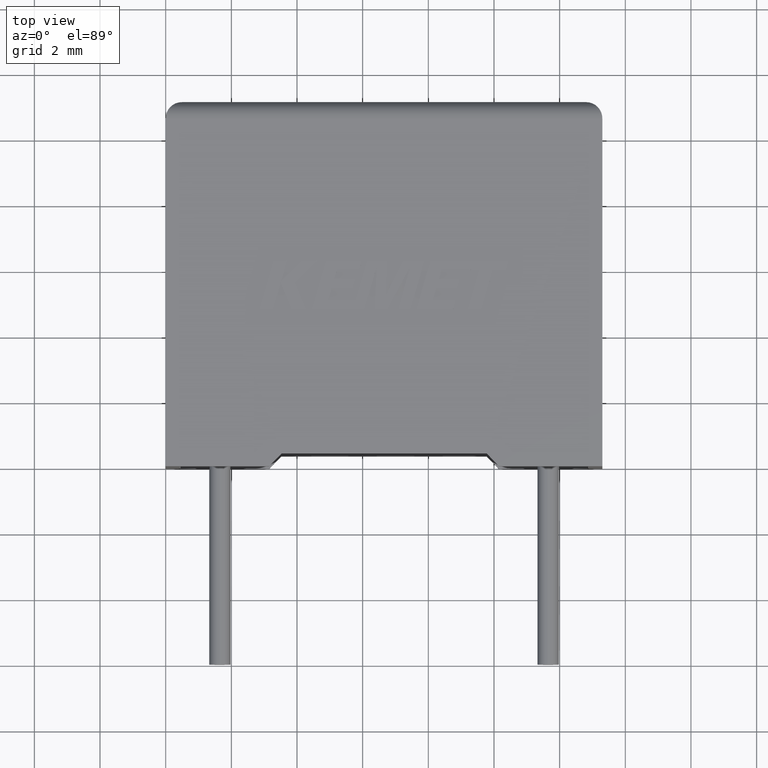
[diagram: clean part render]
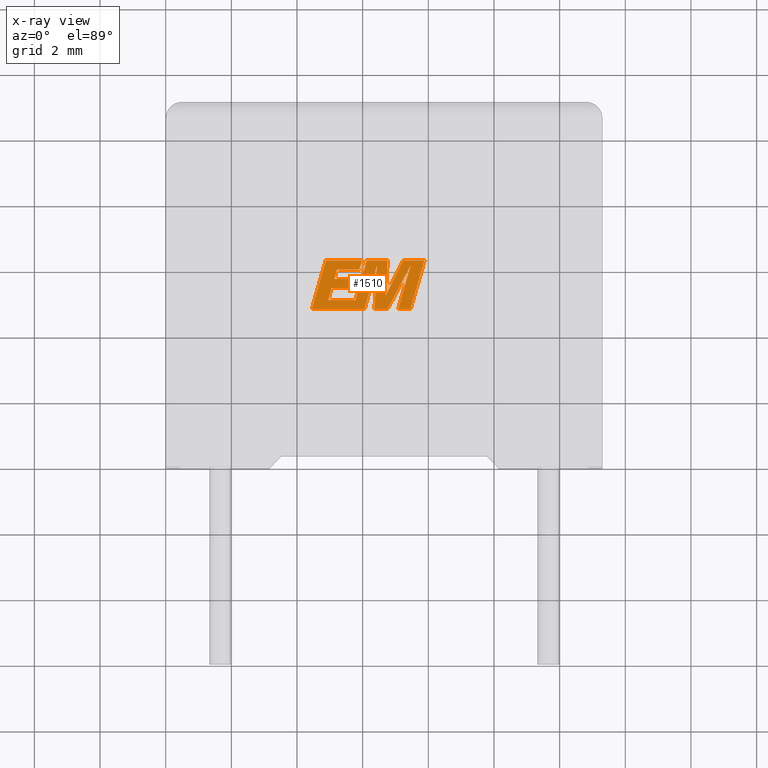
[diagram: x-ray — body ghosted, one internal face saturated and labeled with its STEP entity id]
A machine part, top view, then the same camera in x-ray: the body is ghosted and one INTERNAL B-rep face — a face not visible from any outside direction — is saturated and labeled: STEP entity #1510.
In plain terms, the highlighted planar face has unit normal (0, 0, -1).
Its self-contained STEP definition (entity closure, byte-faithful):
#1 = LINE ( 'NONE', #2797, #110 ) ;
#28 = CARTESIAN_POINT ( 'NONE',  ( 5.895819663393493393, 5.982482753930726815, 5.200000000000000178 ) ) ;
#61 = AXIS2_PLACEMENT_3D ( 'NONE', #2586, #1166, #503 ) ;
#104 = ORIENTED_EDGE ( 'NONE', *, *, #723, .F. ) ;
#107 = CARTESIAN_POINT ( 'NONE',  ( 7.459119663545648926, 6.108967968799302817, 5.200000000000000178 ) ) ;
#110 = VECTOR ( 'NONE', #671, 1000.000000000000114 ) ;
#144 = VECTOR ( 'NONE', #1654, 1000.000000000000114 ) ;
#169 = VECTOR ( 'NONE', #629, 1000.000000000000000 ) ;
#188 = DIRECTION ( 'NONE',  ( 0.4668459304955080436, 0.8843386665637680277, 0.000000000000000000 ) ) ;
#193 = CARTESIAN_POINT ( 'NONE',  ( 4.875807269723588355, 6.266041733162105665, 5.200000000000000178 ) ) ;
#197 = VERTEX_POINT ( 'NONE', #2686 ) ;
#207 = VECTOR ( 'NONE', #244, 1000.000000000000000 ) ;
#216 = LINE ( 'NONE', #1139, #352 ) ;
#232 = DIRECTION ( 'NONE',  ( -1.000000000000000000, 0.000000000000000000, 0.000000000000000000 ) ) ;
#244 = DIRECTION ( 'NONE',  ( 1.000000000000000000, 0.000000000000000000, 0.000000000000000000 ) ) ;
#255 = VECTOR ( 'NONE', #1587, 1000.000000000000227 ) ;
#265 = EDGE_CURVE ( 'NONE', #2612, #1497, #536, .T. ) ;
#283 = EDGE_CURVE ( 'NONE', #2634, #1893, #782, .T. ) ;
#317 = DIRECTION ( 'NONE',  ( 0.2759782365590697228, 0.9611638845408966292, 0.000000000000000000 ) ) ;
#327 = ORIENTED_EDGE ( 'NONE', *, *, #1195, .F. ) ;
#352 = VECTOR ( 'NONE', #2345, 1000.000000000000000 ) ;
#362 = CARTESIAN_POINT ( 'NONE',  ( 5.057893616679458582, 5.430000009952513196, 5.200000000000000178 ) ) ;
#376 = CARTESIAN_POINT ( 'NONE',  ( 4.875807269723588355, 6.266041733162105665, 5.200000000000000178 ) ) ;
#383 = VERTEX_POINT ( 'NONE', #2536 ) ;
#393 = DIRECTION ( 'NONE',  ( -1.000000000000000000, 0.000000000000000000, 0.000000000000000000 ) ) ;
#413 = EDGE_CURVE ( 'NONE', #781, #600, #1628, .T. ) ;
#416 = VERTEX_POINT ( 'NONE', #1910 ) ;
#453 = CARTESIAN_POINT ( 'NONE',  ( 7.076429867546158547, 4.776329999999952669, 5.200000000000000178 ) ) ;
#460 = EDGE_CURVE ( 'NONE', #1689, #2651, #1376, .T. ) ;
#461 = LINE ( 'NONE', #2805, #255 ) ;
#473 = CARTESIAN_POINT ( 'NONE',  ( 5.778212511156970876, 5.059748560896471403, 5.200000000000000178 ) ) ;
#488 = VERTEX_POINT ( 'NONE', #1881 ) ;
#496 = CARTESIAN_POINT ( 'NONE',  ( 5.775866166035169336, 5.705396607103880413, 5.200000000000000178 ) ) ;
#502 = EDGE_CURVE ( 'NONE', #1497, #871, #1, .T. ) ;
#503 = DIRECTION ( 'NONE',  ( -1.000000000000000000, 0.000000000000000000, 0.000000000000000000 ) ) ;
#536 = LINE ( 'NONE', #1685, #986 ) ;
#538 = DIRECTION ( 'NONE',  ( -0.2760118818968580467, -0.9611542233438683525, 0.000000000000000000 ) ) ;
#559 = DIRECTION ( 'NONE',  ( 1.000000000000000000, 0.000000000000000000, 0.000000000000000000 ) ) ;
#600 = VERTEX_POINT ( 'NONE', #731 ) ;
#601 = CARTESIAN_POINT ( 'NONE',  ( 5.697204719198019518, 5.430000009952513196, 5.200000000000000178 ) ) ;
#621 = LINE ( 'NONE', #1312, #2038 ) ;
#629 = DIRECTION ( 'NONE',  ( -1.000000000000000000, 0.000000000000000000, 0.000000000000000000 ) ) ;
#671 = DIRECTION ( 'NONE',  ( -0.05596501978069369498, -0.9984327301130239141, 0.000000000000000000 ) ) ;
#686 = VECTOR ( 'NONE', #1622, 1000.000000000000000 ) ;
#720 = VERTEX_POINT ( 'NONE', #376 ) ;
#721 = CARTESIAN_POINT ( 'NONE',  ( 7.883291754265685292, 6.266041733162105665, 5.200000000000000178 ) ) ;
#723 = EDGE_CURVE ( 'NONE', #2399, #720, #621, .T. ) ;
#731 = CARTESIAN_POINT ( 'NONE',  ( 6.759361676519667128, 6.266041733162105665, 5.200000000000000178 ) ) ;
#737 = EDGE_LOOP ( 'NONE', ( #2693, #327, #2290, #2417, #3003, #1469, #2865, #1142, #1230, #2315, #104, #2250, #1514, #2989, #1289, #1130, #2434, #2849, #1158, #2273, #1860, #2173, #2753 ) ) ;
#781 = VERTEX_POINT ( 'NONE', #1796 ) ;
#782 = LINE ( 'NONE', #2930, #2774 ) ;
#816 = LINE ( 'NONE', #107, #1804 ) ;
#838 = VERTEX_POINT ( 'NONE', #453 ) ;
#841 = VECTOR ( 'NONE', #2944, 1000.000000000000000 ) ;
#848 = LINE ( 'NONE', #2495, #2410 ) ;
#854 = EDGE_CURVE ( 'NONE', #2739, #781, #216, .T. ) ;
#859 = LINE ( 'NONE', #1802, #169 ) ;
#861 = CARTESIAN_POINT ( 'NONE',  ( 5.217091774605201238, 5.982482753930726815, 5.200000000000000178 ) ) ;
#871 = VERTEX_POINT ( 'NONE', #1435 ) ;
#893 = CARTESIAN_POINT ( 'NONE',  ( 7.459119663545648926, 6.108967968799302817, 5.200000000000000178 ) ) ;
#906 = LINE ( 'NONE', #496, #2682 ) ;
#907 = LINE ( 'NONE', #1409, #144 ) ;
#936 = DIRECTION ( 'NONE',  ( 0.2732148821746286371, 0.9619530280415482526, 0.000000000000000000 ) ) ;
#974 = CARTESIAN_POINT ( 'NONE',  ( 7.883291754265685292, 6.266041733162105665, 5.200000000000000178 ) ) ;
#986 = VECTOR ( 'NONE', #317, 1000.000000000000227 ) ;
#1019 = LINE ( 'NONE', #2913, #2505 ) ;
#1047 = VERTEX_POINT ( 'NONE', #2023 ) ;
#1048 = EDGE_CURVE ( 'NONE', #2151, #2612, #1055, .T. ) ;
#1055 = LINE ( 'NONE', #2498, #2120 ) ;
#1070 = CARTESIAN_POINT ( 'NONE',  ( 5.976356374482169720, 6.266041733162105665, 5.200000000000000178 ) ) ;
#1130 = ORIENTED_EDGE ( 'NONE', *, *, #2055, .F. ) ;
#1139 = CARTESIAN_POINT ( 'NONE',  ( 7.229914320042385434, 6.266041733162105665, 5.200000000000000178 ) ) ;
#1142 = ORIENTED_EDGE ( 'NONE', *, *, #265, .F. ) ;
#1158 = ORIENTED_EDGE ( 'NONE', *, *, #2131, .F. ) ;
#1159 = CARTESIAN_POINT ( 'NONE',  ( 5.778212511156970876, 5.059748560896471403, 5.200000000000000178 ) ) ;
#1166 = DIRECTION ( 'NONE',  ( 0.000000000000000000, 0.000000000000000000, -1.000000000000000000 ) ) ;
#1195 = EDGE_CURVE ( 'NONE', #2700, #2313, #1940, .T. ) ;
#1230 = ORIENTED_EDGE ( 'NONE', *, *, #1048, .F. ) ;
#1264 = DIRECTION ( 'NONE',  ( 1.000000000000000000, 0.000000000000000000, 0.000000000000000000 ) ) ;
#1282 = VECTOR ( 'NONE', #936, 1000.000000000000227 ) ;
#1289 = ORIENTED_EDGE ( 'NONE', *, *, #1839, .F. ) ;
#1312 = CARTESIAN_POINT ( 'NONE',  ( 5.976356374482169720, 6.266041733162105665, 5.200000000000000178 ) ) ;
#1327 = EDGE_CURVE ( 'NONE', #383, #416, #1490, .T. ) ;
#1371 = EDGE_CURVE ( 'NONE', #2313, #2739, #1891, .T. ) ;
#1376 = LINE ( 'NONE', #1386, #207 ) ;
#1383 = FACE_OUTER_BOUND ( 'NONE', #737, .T. ) ;
#1386 = CARTESIAN_POINT ( 'NONE',  ( 5.217091774605201238, 5.982482753930726815, 5.200000000000000178 ) ) ;
#1408 = DIRECTION ( 'NONE',  ( -1.000000000000000000, 0.000000000000000000, 0.000000000000000000 ) ) ;
#1409 = CARTESIAN_POINT ( 'NONE',  ( 4.952398678476170879, 5.059748560896471403, 5.200000000000000178 ) ) ;
#1429 = LINE ( 'NONE', #28, #1282 ) ;
#1435 = CARTESIAN_POINT ( 'NONE',  ( 6.358470907063627386, 4.776329999999952669, 5.200000000000000178 ) ) ;
#1469 = ORIENTED_EDGE ( 'NONE', *, *, #1764, .F. ) ;
#1490 = LINE ( 'NONE', #362, #2032 ) ;
#1497 = VERTEX_POINT ( 'NONE', #1905 ) ;
#1510 = ADVANCED_FACE ( 'NONE', ( #1383 ), #2142, .T. ) ;
#1514 = ORIENTED_EDGE ( 'NONE', *, *, #460, .F. ) ;
#1521 = CARTESIAN_POINT ( 'NONE',  ( 6.358470907063627386, 4.776329999999952669, 5.200000000000000178 ) ) ;
#1532 = CARTESIAN_POINT ( 'NONE',  ( 5.895819663393493393, 5.982482753930726815, 5.200000000000000178 ) ) ;
#1547 = LINE ( 'NONE', #193, #2322 ) ;
#1561 = VECTOR ( 'NONE', #2442, 1000.000000000000000 ) ;
#1587 = DIRECTION ( 'NONE',  ( 0.2793947940878294123, 0.9601763114327593884, 0.000000000000000000 ) ) ;
#1614 = DIRECTION ( 'NONE',  ( 0.05375259206908576670, 0.9985542843760946141, 0.000000000000000000 ) ) ;
#1622 = DIRECTION ( 'NONE',  ( -1.000000000000000000, 0.000000000000000000, 0.000000000000000000 ) ) ;
#1628 = LINE ( 'NONE', #1896, #3023 ) ;
#1654 = DIRECTION ( 'NONE',  ( 0.2740217765954066076, 0.9617234872620595842, 0.000000000000000000 ) ) ;
#1685 = CARTESIAN_POINT ( 'NONE',  ( 6.052005620297330246, 4.776329999999952669, 5.200000000000000178 ) ) ;
#1689 = VERTEX_POINT ( 'NONE', #861 ) ;
#1724 = VECTOR ( 'NONE', #232, 1000.000000000000000 ) ;
#1764 = EDGE_CURVE ( 'NONE', #871, #2634, #2528, .T. ) ;
#1785 = EDGE_CURVE ( 'NONE', #720, #2151, #1547, .T. ) ;
#1796 = CARTESIAN_POINT ( 'NONE',  ( 6.702071623094297159, 5.201772530543696149, 5.200000000000000178 ) ) ;
#1802 = CARTESIAN_POINT ( 'NONE',  ( 6.759361676519667128, 6.266041733162105665, 5.200000000000000178 ) ) ;
#1804 = VECTOR ( 'NONE', #538, 1000.000000000000114 ) ;
#1836 = CARTESIAN_POINT ( 'NONE',  ( 4.447128202130666175, 4.776329999999951781, 5.200000000000000178 ) ) ;
#1839 = EDGE_CURVE ( 'NONE', #1047, #488, #906, .T. ) ;
#1860 = ORIENTED_EDGE ( 'NONE', *, *, #2091, .F. ) ;
#1865 = EDGE_CURVE ( 'NONE', #2651, #2399, #1429, .T. ) ;
#1881 = CARTESIAN_POINT ( 'NONE',  ( 5.136464471040756763, 5.705396607103880413, 5.200000000000000178 ) ) ;
#1891 = LINE ( 'NONE', #974, #686 ) ;
#1893 = VERTEX_POINT ( 'NONE', #893 ) ;
#1895 = EDGE_CURVE ( 'NONE', #488, #1689, #461, .T. ) ;
#1896 = CARTESIAN_POINT ( 'NONE',  ( 6.702071623094297159, 5.201772530543696149, 5.200000000000000178 ) ) ;
#1905 = CARTESIAN_POINT ( 'NONE',  ( 6.432811092798344177, 6.102581199250461275, 5.200000000000000178 ) ) ;
#1910 = CARTESIAN_POINT ( 'NONE',  ( 5.697204719198019518, 5.430000009952513196, 5.200000000000000178 ) ) ;
#1940 = LINE ( 'NONE', #2600, #1561 ) ;
#2023 = CARTESIAN_POINT ( 'NONE',  ( 5.775866166035169336, 5.705396607103880413, 5.200000000000000178 ) ) ;
#2032 = VECTOR ( 'NONE', #559, 1000.000000000000000 ) ;
#2038 = VECTOR ( 'NONE', #393, 1000.000000000000000 ) ;
#2055 = EDGE_CURVE ( 'NONE', #416, #1047, #2524, .T. ) ;
#2076 = LINE ( 'NONE', #473, #1724 ) ;
#2091 = EDGE_CURVE ( 'NONE', #600, #2621, #859, .T. ) ;
#2120 = VECTOR ( 'NONE', #2512, 1000.000000000000000 ) ;
#2131 = EDGE_CURVE ( 'NONE', #2194, #197, #2076, .T. ) ;
#2142 = PLANE ( 'NONE',  #61 ) ;
#2151 = VERTEX_POINT ( 'NONE', #1836 ) ;
#2173 = ORIENTED_EDGE ( 'NONE', *, *, #413, .F. ) ;
#2194 = VERTEX_POINT ( 'NONE', #1159 ) ;
#2250 = ORIENTED_EDGE ( 'NONE', *, *, #1865, .F. ) ;
#2255 = CARTESIAN_POINT ( 'NONE',  ( 6.124946153474795985, 6.266041733162105665, 5.200000000000000178 ) ) ;
#2267 = DIRECTION ( 'NONE',  ( 1.000000000000000000, 0.000000000000000000, 0.000000000000000000 ) ) ;
#2273 = ORIENTED_EDGE ( 'NONE', *, *, #2939, .F. ) ;
#2290 = ORIENTED_EDGE ( 'NONE', *, *, #2886, .F. ) ;
#2310 = CARTESIAN_POINT ( 'NONE',  ( 6.755614732595176974, 4.776329999999952669, 5.200000000000000178 ) ) ;
#2313 = VERTEX_POINT ( 'NONE', #721 ) ;
#2315 = ORIENTED_EDGE ( 'NONE', *, *, #1785, .F. ) ;
#2322 = VECTOR ( 'NONE', #2733, 1000.000000000000227 ) ;
#2345 = DIRECTION ( 'NONE',  ( -0.4443210308329518243, -0.8958676361826802825, 0.000000000000000000 ) ) ;
#2399 = VERTEX_POINT ( 'NONE', #1070 ) ;
#2410 = VECTOR ( 'NONE', #2510, 1000.000000000000227 ) ;
#2417 = ORIENTED_EDGE ( 'NONE', *, *, #3024, .F. ) ;
#2434 = ORIENTED_EDGE ( 'NONE', *, *, #1327, .F. ) ;
#2442 = DIRECTION ( 'NONE',  ( 0.2763139702539113562, 0.9610674221107073922, 0.000000000000000000 ) ) ;
#2495 = CARTESIAN_POINT ( 'NONE',  ( 6.124946153474795985, 6.266041733162105665, 5.200000000000000178 ) ) ;
#2498 = CARTESIAN_POINT ( 'NONE',  ( 5.786841443299758581, 4.776329999999952669, 5.200000000000000178 ) ) ;
#2505 = VECTOR ( 'NONE', #1264, 1000.000000000000000 ) ;
#2510 = DIRECTION ( 'NONE',  ( -0.2762517575166416606, -0.9610853065513833560, 0.000000000000000000 ) ) ;
#2512 = DIRECTION ( 'NONE',  ( 1.000000000000000000, 0.000000000000000000, 0.000000000000000000 ) ) ;
#2524 = LINE ( 'NONE', #601, #841 ) ;
#2528 = LINE ( 'NONE', #1521, #2873 ) ;
#2536 = CARTESIAN_POINT ( 'NONE',  ( 5.057893616679458582, 5.430000009952513196, 5.200000000000000178 ) ) ;
#2570 = CARTESIAN_POINT ( 'NONE',  ( 7.454988646644112649, 4.776329999999952669, 5.200000000000000178 ) ) ;
#2586 = CARTESIAN_POINT ( 'NONE',  ( -0.1616953557737341451, -0.04538259395771987448, 5.200000000000000178 ) ) ;
#2600 = CARTESIAN_POINT ( 'NONE',  ( 7.454988646644112649, 4.776329999999952669, 5.200000000000000178 ) ) ;
#2612 = VERTEX_POINT ( 'NONE', #2920 ) ;
#2621 = VERTEX_POINT ( 'NONE', #2255 ) ;
#2634 = VERTEX_POINT ( 'NONE', #2310 ) ;
#2651 = VERTEX_POINT ( 'NONE', #1532 ) ;
#2682 = VECTOR ( 'NONE', #1408, 1000.000000000000000 ) ;
#2686 = CARTESIAN_POINT ( 'NONE',  ( 4.952398678476170879, 5.059748560896471403, 5.200000000000000178 ) ) ;
#2693 = ORIENTED_EDGE ( 'NONE', *, *, #1371, .F. ) ;
#2700 = VERTEX_POINT ( 'NONE', #2570 ) ;
#2716 = EDGE_CURVE ( 'NONE', #197, #383, #907, .T. ) ;
#2733 = DIRECTION ( 'NONE',  ( -0.2765379750249962743, -0.9610029908221277006, 0.000000000000000000 ) ) ;
#2739 = VERTEX_POINT ( 'NONE', #3038 ) ;
#2753 = ORIENTED_EDGE ( 'NONE', *, *, #854, .F. ) ;
#2774 = VECTOR ( 'NONE', #188, 1000.000000000000000 ) ;
#2797 = CARTESIAN_POINT ( 'NONE',  ( 6.432811092798344177, 6.102581199250461275, 5.200000000000000178 ) ) ;
#2805 = CARTESIAN_POINT ( 'NONE',  ( 5.136464471040756763, 5.705396607103880413, 5.200000000000000178 ) ) ;
#2849 = ORIENTED_EDGE ( 'NONE', *, *, #2716, .F. ) ;
#2865 = ORIENTED_EDGE ( 'NONE', *, *, #502, .F. ) ;
#2873 = VECTOR ( 'NONE', #2267, 1000.000000000000000 ) ;
#2886 = EDGE_CURVE ( 'NONE', #838, #2700, #1019, .T. ) ;
#2913 = CARTESIAN_POINT ( 'NONE',  ( 7.076429867546158547, 4.776329999999952669, 5.200000000000000178 ) ) ;
#2920 = CARTESIAN_POINT ( 'NONE',  ( 6.052005620297330246, 4.776329999999952669, 5.200000000000000178 ) ) ;
#2930 = CARTESIAN_POINT ( 'NONE',  ( 6.755614732595176974, 4.776329999999952669, 5.200000000000000178 ) ) ;
#2939 = EDGE_CURVE ( 'NONE', #2621, #2194, #848, .T. ) ;
#2944 = DIRECTION ( 'NONE',  ( 0.2746459304916892830, 0.9615454294334481178, 0.000000000000000000 ) ) ;
#2989 = ORIENTED_EDGE ( 'NONE', *, *, #1895, .F. ) ;
#3003 = ORIENTED_EDGE ( 'NONE', *, *, #283, .F. ) ;
#3023 = VECTOR ( 'NONE', #1614, 1000.000000000000000 ) ;
#3024 = EDGE_CURVE ( 'NONE', #1893, #838, #816, .T. ) ;
#3038 = CARTESIAN_POINT ( 'NONE',  ( 7.229914320042385434, 6.266041733162105665, 5.200000000000000178 ) ) ;